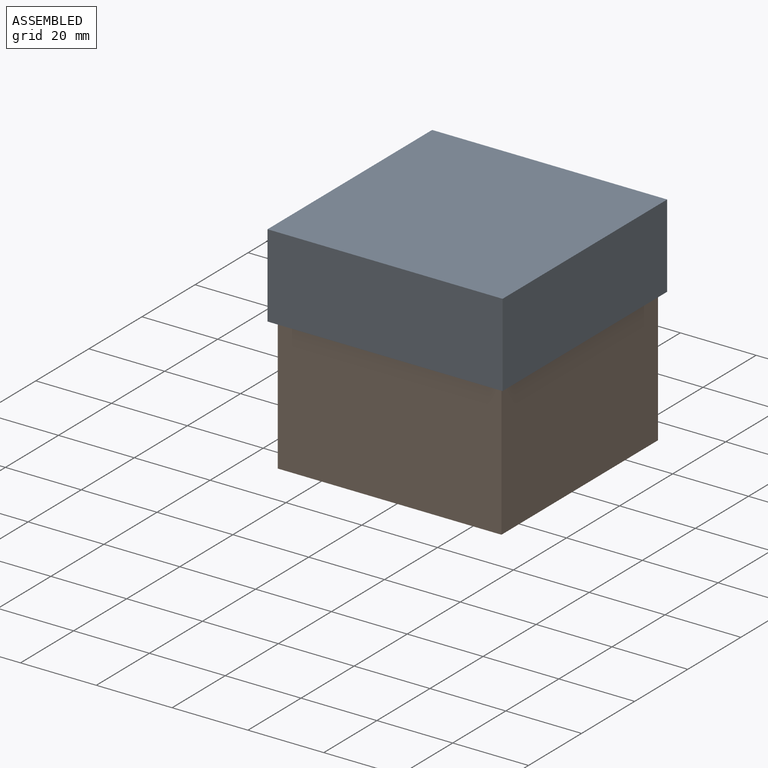
[diagram: assembled view]
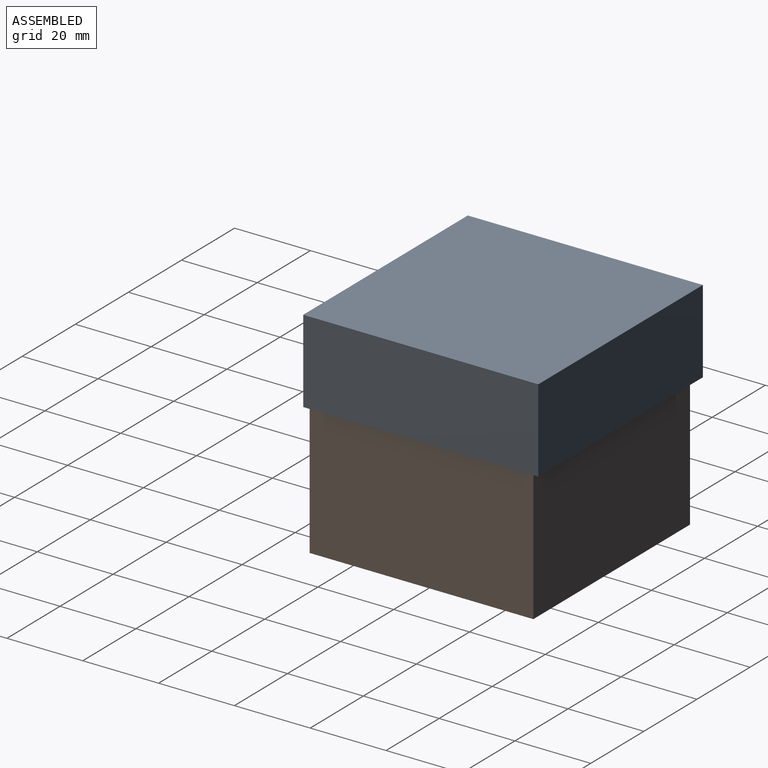
[diagram: assembled view, second angle]
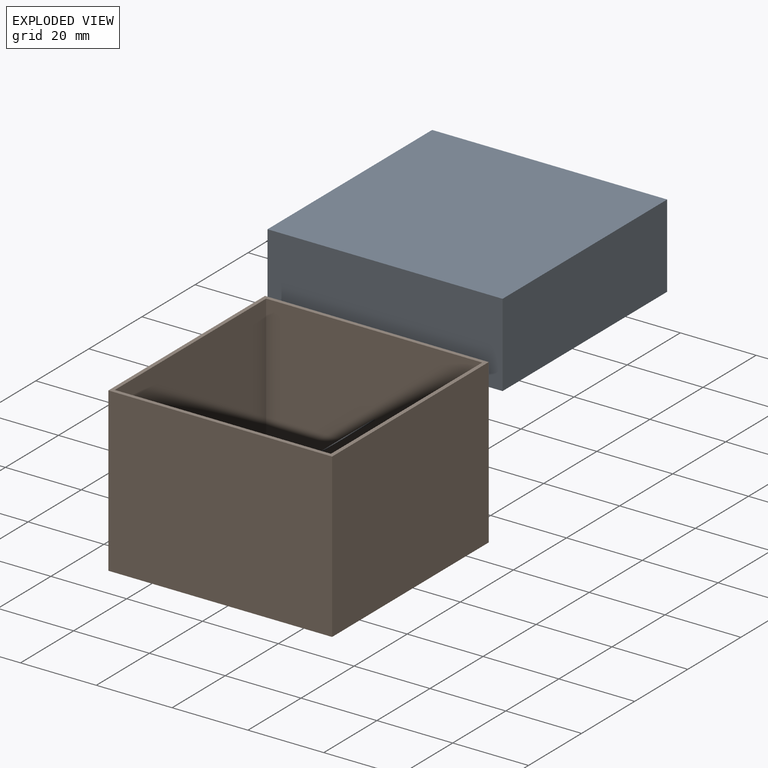
[diagram: exploded view]
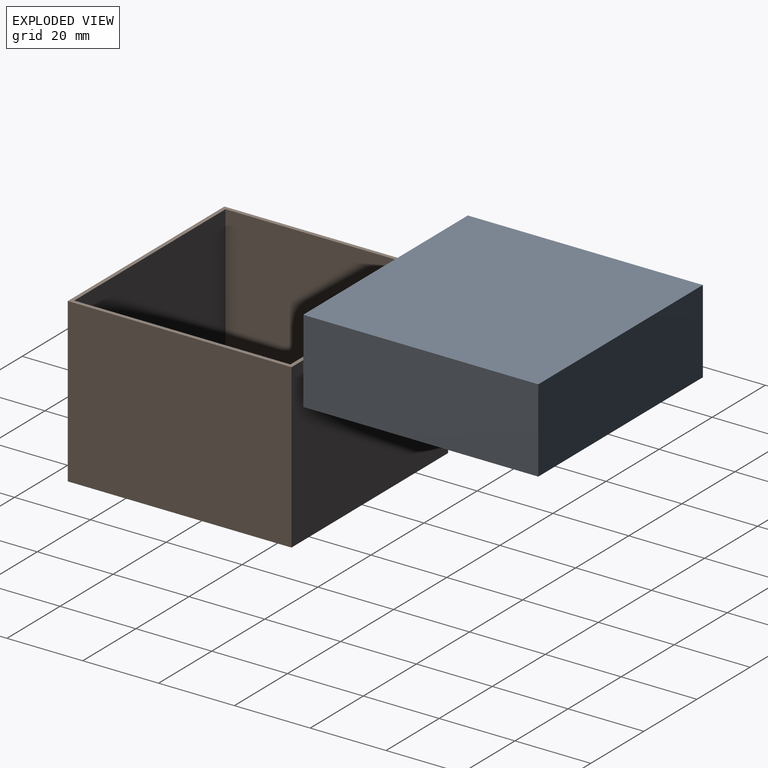
[diagram: exploded view, second angle]
ASSEMBLY  parts=2 mates=2
PART A: 16 faces, bbox 62x62x22 mm
  f0: plane 60x60mm, normal (0,0,1), area 236mm2, adj f7,f8,f9,f10,f11,f12,f13,f14
  f1: plane 62x62mm, normal (0,0,1), area 244mm2, adj f2,f3,f4,f5,f7,f8,f9,f10
  f2: plane 62x22mm, normal (0,-1,0), area 1364mm2, adj f1,f3,f5,f6
  f3: plane 62x22mm, normal (1,0,0), area 1364mm2, adj f1,f2,f4,f6
  f4: plane 62x22mm, normal (0,1,0), area 1364mm2, adj f1,f3,f5,f6
  f5: plane 62x22mm, normal (-1,0,0), area 1364mm2, adj f1,f2,f4,f6
  f6: plane 62x62mm, normal (0,0,-1), area 3844mm2, adj f2,f3,f4,f5
  f7: plane 60x10mm, normal (0,1,0), area 600mm2, adj f0,f1,f8,f10
  f8: plane 60x10mm, normal (-1,0,0), area 600mm2, adj f0,f1,f7,f9
  f9: plane 60x10mm, normal (0,-1,0), area 600mm2, adj f0,f1,f8,f10
  f10: plane 60x10mm, normal (1,0,0), area 600mm2, adj f0,f1,f7,f9
  f11: plane 58x10mm, normal (0,1,0), area 580mm2, adj f0,f12,f14,f15
  f12: plane 58x10mm, normal (-1,0,0), area 580mm2, adj f0,f11,f13,f15
  f13: plane 58x10mm, normal (0,-1,0), area 580mm2, adj f0,f12,f14,f15
  f14: plane 58x10mm, normal (1,0,0), area 580mm2, adj f0,f11,f13,f15
  f15: plane 58x58mm, normal (0,0,1), area 3364mm2, adj f11,f12,f13,f14
PART B: 11 faces, bbox 59x59x43 mm
  f0: plane 59x59mm, normal (0,0,1), area 232mm2, adj f1,f2,f3,f4,f6,f7,f8,f9
  f1: plane 59x43mm, normal (0,-1,0), area 2537mm2, adj f0,f2,f4,f5
  f2: plane 59x43mm, normal (1,0,0), area 2537mm2, adj f0,f1,f3,f5
  f3: plane 59x43mm, normal (0,1,0), area 2537mm2, adj f0,f2,f4,f5
  f4: plane 59x43mm, normal (-1,0,0), area 2537mm2, adj f0,f1,f3,f5
  f5: plane 59x59mm, normal (0,0,-1), area 3481mm2, adj f1,f2,f3,f4
  f6: plane 57x42mm, normal (0,1,0), area 2394mm2, adj f0,f7,f9,f10
  f7: plane 57x42mm, normal (-1,0,0), area 2394mm2, adj f0,f6,f8,f10
  f8: plane 57x42mm, normal (0,-1,0), area 2394mm2, adj f0,f7,f9,f10
  f9: plane 57x42mm, normal (1,0,0), area 2394mm2, adj f0,f6,f8,f10
  f10: plane 57x57mm, normal (0,0,1), area 3249mm2, adj f6,f7,f8,f9
PLACE A rot(axis=(0,1,0),180deg) t=(-0.5,0.5,56.9)mm
PLACE B at identity fixed
MATE planar A.f7 <-> B.f1  axis (0,1,0) through (-0.5,-29.5,39.9)mm
MATE planar A.f10 <-> B.f2  axis (-1,0,0) through (29.5,0.5,39.9)mm
